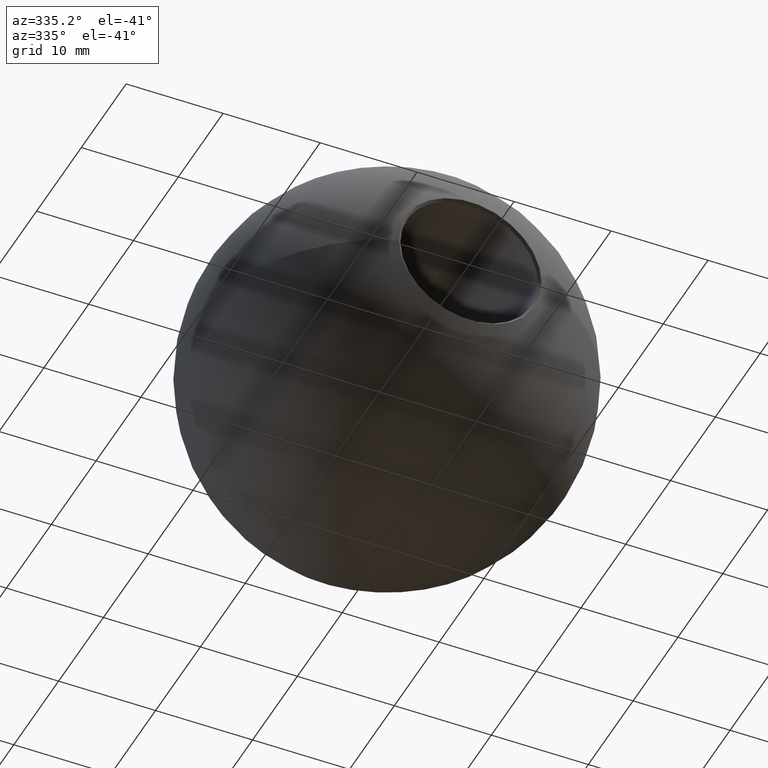
[diagram: clean part render]
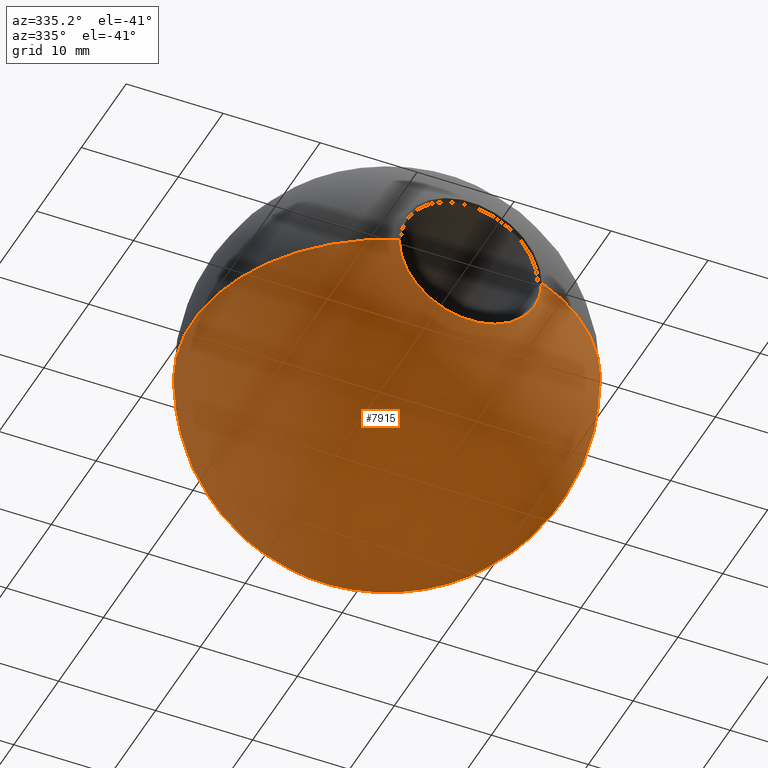
[diagram: same view with one face highlighted and labeled with its STEP entity id]
A machine part, auxiliary view. The second image highlights one B-rep face of the part: STEP entity #7915.
In plain terms, the highlighted spherical surface has radius 20 mm.
Its self-contained STEP definition (entity closure, byte-faithful):
#352 = ORIENTED_EDGE ( 'NONE', *, *, #10460, .T. ) ;
#845 = EDGE_CURVE ( 'NONE', #8078, #9247, #8067, .T. ) ;
#1779 = DIRECTION ( 'NONE',  ( 0.0000000000000000000, -0.0000000000000000000, 1.000000000000000000 ) ) ;
#1896 = CARTESIAN_POINT ( 'NONE',  ( -1.817686710427047200E-016, 20.00000000000000400, 0.0000000000000000000 ) ) ;
#2740 = DIRECTION ( 'NONE',  ( 1.224646799147353200E-016, 8.611811019197870800E-033, 1.000000000000000000 ) ) ;
#3219 = ORIENTED_EDGE ( 'NONE', *, *, #845, .F. ) ;
#3751 = FACE_OUTER_BOUND ( 'NONE', #5282, .T. ) ;
#4042 = CARTESIAN_POINT ( 'NONE',  ( 2.714414938057525200E-015, -18.60047042415864000, 0.0000000000000000000 ) ) ;
#4168 = CARTESIAN_POINT ( 'NONE',  ( 0.0000000000000000000, 0.0000000000000000000, 0.0000000000000000000 ) ) ;
#4446 = CIRCLE ( 'NONE', #5206, 20.00000000000000400 ) ;
#4501 = CARTESIAN_POINT ( 'NONE',  ( 7.349999999999991700, -18.60047042415864000, 0.0000000000000000000 ) ) ;
#4948 = ORIENTED_EDGE ( 'NONE', *, *, #9328, .F. ) ;
#5206 = AXIS2_PLACEMENT_3D ( 'NONE', #4168, #8852, #11678 ) ;
#5282 = EDGE_LOOP ( 'NONE', ( #4948, #352, #3219 ) ) ;
#5487 = SPHERICAL_SURFACE ( 'NONE', #9782, 20.00000000000000400 ) ;
#5496 = CARTESIAN_POINT ( 'NONE',  ( 0.0000000000000000000, 0.0000000000000000000, 0.0000000000000000000 ) ) ;
#6041 = VERTEX_POINT ( 'NONE', #1896 ) ;
#6905 = DIRECTION ( 'NONE',  ( 1.000000000000000000, 0.0000000000000000000, 0.0000000000000000000 ) ) ;
#6937 = AXIS2_PLACEMENT_3D ( 'NONE', #10342, #2740, #8408 ) ;
#7740 = DIRECTION ( 'NONE',  ( 7.032077350950289500E-017, -1.000000000000000000, -0.0000000000000000000 ) ) ;
#7915 = ADVANCED_FACE ( 'NONE', ( #3751 ), #5487, .T. ) ;
#8067 = CIRCLE ( 'NONE', #10542, 7.349999999999989900 ) ;
#8078 = VERTEX_POINT ( 'NONE', #10521 ) ;
#8408 = DIRECTION ( 'NONE',  ( 1.000000000000000000, 0.0000000000000000000, -1.224646799147353200E-016 ) ) ;
#8617 = DIRECTION ( 'NONE',  ( 1.000000000000000000, 7.032077350950289500E-017, 0.0000000000000000000 ) ) ;
#8852 = DIRECTION ( 'NONE',  ( 0.0000000000000000000, 0.0000000000000000000, -1.000000000000000000 ) ) ;
#9247 = VERTEX_POINT ( 'NONE', #4501 ) ;
#9328 = EDGE_CURVE ( 'NONE', #6041, #8078, #11233, .T. ) ;
#9782 = AXIS2_PLACEMENT_3D ( 'NONE', #5496, #1779, #8617 ) ;
#10342 = CARTESIAN_POINT ( 'NONE',  ( 0.0000000000000000000, 0.0000000000000000000, 0.0000000000000000000 ) ) ;
#10460 = EDGE_CURVE ( 'NONE', #6041, #9247, #4446, .T. ) ;
#10521 = CARTESIAN_POINT ( 'NONE',  ( -7.349999999999988100, -18.60047042415864000, 9.001153973733035800E-016 ) ) ;
#10542 = AXIS2_PLACEMENT_3D ( 'NONE', #4042, #7740, #6905 ) ;
#11233 = CIRCLE ( 'NONE', #6937, 20.00000000000000400 ) ;
#11678 = DIRECTION ( 'NONE',  ( -1.000000000000000000, 0.0000000000000000000, 0.0000000000000000000 ) ) ;